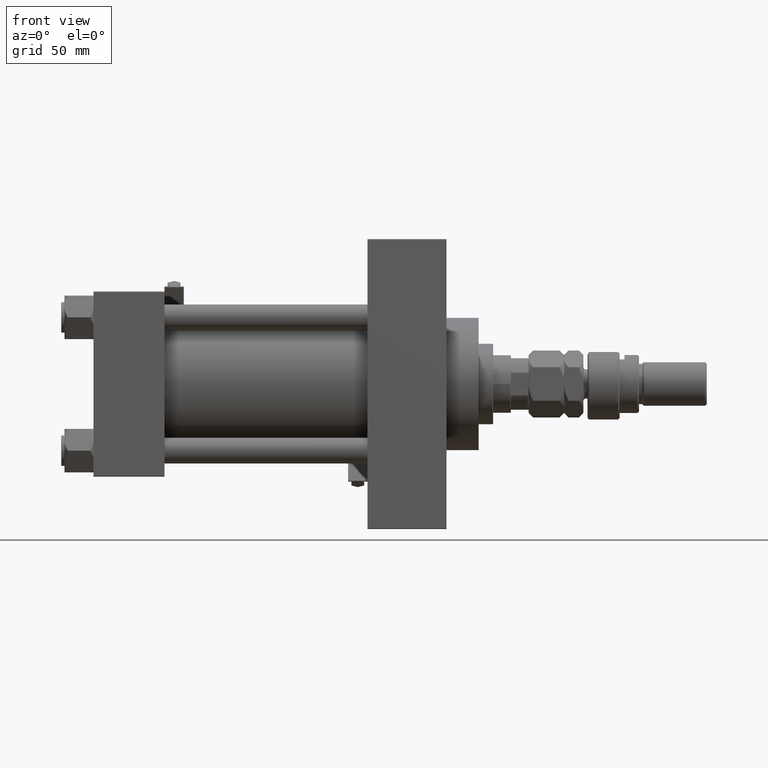
[diagram: clean part render]
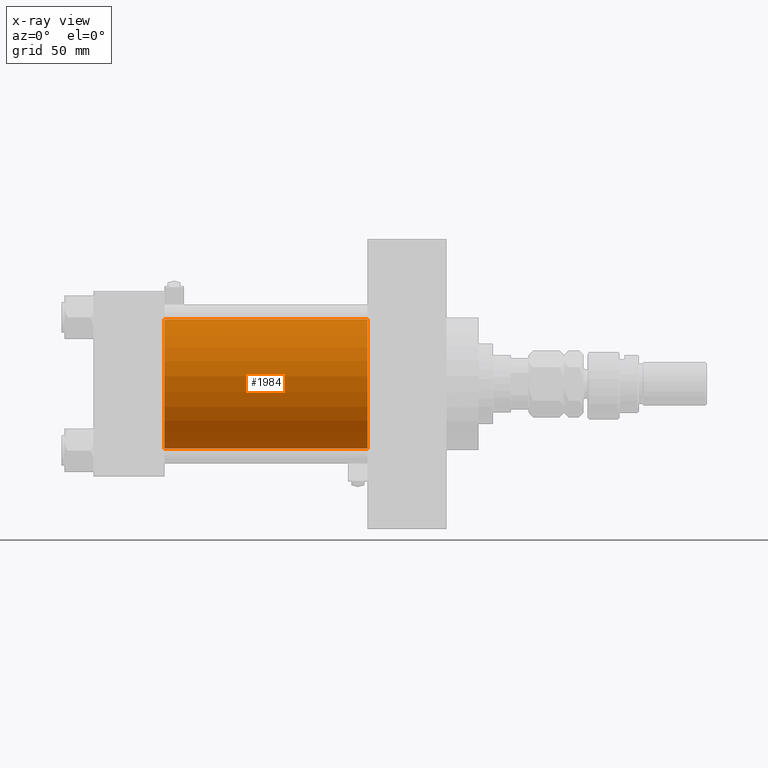
[diagram: x-ray — body ghosted, one internal face saturated and labeled with its STEP entity id]
A machine part, front view, then the same camera in x-ray: the body is ghosted and one INTERNAL B-rep face — a face not visible from any outside direction — is saturated and labeled: STEP entity #1984.
In plain terms, the highlighted cylindrical surface (partial cylindrical patch) has radius 40 mm, axis along (-1, -0, -0).
Its self-contained STEP definition (entity closure, byte-faithful):
#77 = ORIENTED_EDGE ( 'NONE', *, *, #42649, .T. ) ;
#1984 = ADVANCED_FACE ( 'NONE', ( #40419 ), #12495, .F. ) ;
#2202 = LINE ( 'NONE', #47768, #36022 ) ;
#5817 = DIRECTION ( 'NONE',  ( 0.000000000000000000, 0.000000000000000000, -1.000000000000000000 ) ) ;
#5879 = LINE ( 'NONE', #21793, #7145 ) ;
#6899 = EDGE_CURVE ( 'NONE', #24160, #27441, #26672, .T. ) ;
#7145 = VECTOR ( 'NONE', #25973, 1000.000000000000000 ) ;
#9866 = VERTEX_POINT ( 'NONE', #12696 ) ;
#12495 = CYLINDRICAL_SURFACE ( 'NONE', #36538, 40.00000000000000000 ) ;
#12532 = DIRECTION ( 'NONE',  ( -1.000000000000000000, -0.000000000000000000, -0.000000000000000000 ) ) ;
#12696 = CARTESIAN_POINT ( 'NONE',  ( 169.9999999999999716, -2.602085213965210642E-15, 40.00000000000000000 ) ) ;
#13912 = CARTESIAN_POINT ( 'NONE',  ( 44.00000000000000000, -2.602085213965210642E-15, 40.00000000000000000 ) ) ;
#17005 = EDGE_LOOP ( 'NONE', ( #77, #30086, #41065, #17751 ) ) ;
#17751 = ORIENTED_EDGE ( 'NONE', *, *, #25690, .F. ) ;
#20563 = CARTESIAN_POINT ( 'NONE',  ( 169.9999999999999716, -2.602085213965210642E-15, 0.000000000000000000 ) ) ;
#21363 = CARTESIAN_POINT ( 'NONE',  ( 169.9999999999999716, -2.602085213965210642E-15, 0.000000000000000000 ) ) ;
#21475 = DIRECTION ( 'NONE',  ( 1.000000000000000000, 0.000000000000000000, 0.000000000000000000 ) ) ;
#21793 = CARTESIAN_POINT ( 'NONE',  ( 169.9999999999999716, -2.602085213965210642E-15, 40.00000000000000000 ) ) ;
#24160 = VERTEX_POINT ( 'NONE', #13912 ) ;
#24167 = AXIS2_PLACEMENT_3D ( 'NONE', #49389, #21475, #5817 ) ;
#25276 = DIRECTION ( 'NONE',  ( 0.000000000000000000, 0.000000000000000000, 1.000000000000000000 ) ) ;
#25690 = EDGE_CURVE ( 'NONE', #9866, #24160, #5879, .T. ) ;
#25973 = DIRECTION ( 'NONE',  ( -1.000000000000000000, -0.000000000000000000, -0.000000000000000000 ) ) ;
#26672 = CIRCLE ( 'NONE', #24167, 40.00000000000000000 ) ;
#27441 = VERTEX_POINT ( 'NONE', #36328 ) ;
#28420 = DIRECTION ( 'NONE',  ( -1.000000000000000000, -0.000000000000000000, -0.000000000000000000 ) ) ;
#30086 = ORIENTED_EDGE ( 'NONE', *, *, #43982, .T. ) ;
#31835 = CIRCLE ( 'NONE', #41846, 40.00000000000000000 ) ;
#35399 = CARTESIAN_POINT ( 'NONE',  ( 169.9999999999999716, 2.296501982624201990E-15, -40.00000000000000000 ) ) ;
#36022 = VECTOR ( 'NONE', #12532, 1000.000000000000000 ) ;
#36328 = CARTESIAN_POINT ( 'NONE',  ( 44.00000000000000000, 2.296501982624201990E-15, -40.00000000000000000 ) ) ;
#36538 = AXIS2_PLACEMENT_3D ( 'NONE', #21363, #28420, #25276 ) ;
#40419 = FACE_OUTER_BOUND ( 'NONE', #17005, .T. ) ;
#41065 = ORIENTED_EDGE ( 'NONE', *, *, #6899, .F. ) ;
#41846 = AXIS2_PLACEMENT_3D ( 'NONE', #20563, #45767, #45516 ) ;
#42649 = EDGE_CURVE ( 'NONE', #9866, #49886, #31835, .T. ) ;
#43982 = EDGE_CURVE ( 'NONE', #49886, #27441, #2202, .T. ) ;
#45516 = DIRECTION ( 'NONE',  ( 0.000000000000000000, 0.000000000000000000, -1.000000000000000000 ) ) ;
#45767 = DIRECTION ( 'NONE',  ( 1.000000000000000000, 0.000000000000000000, 0.000000000000000000 ) ) ;
#47768 = CARTESIAN_POINT ( 'NONE',  ( 169.9999999999999716, 2.296501982624201990E-15, -40.00000000000000000 ) ) ;
#49389 = CARTESIAN_POINT ( 'NONE',  ( 44.00000000000000000, -2.602085213965210642E-15, 0.000000000000000000 ) ) ;
#49886 = VERTEX_POINT ( 'NONE', #35399 ) ;